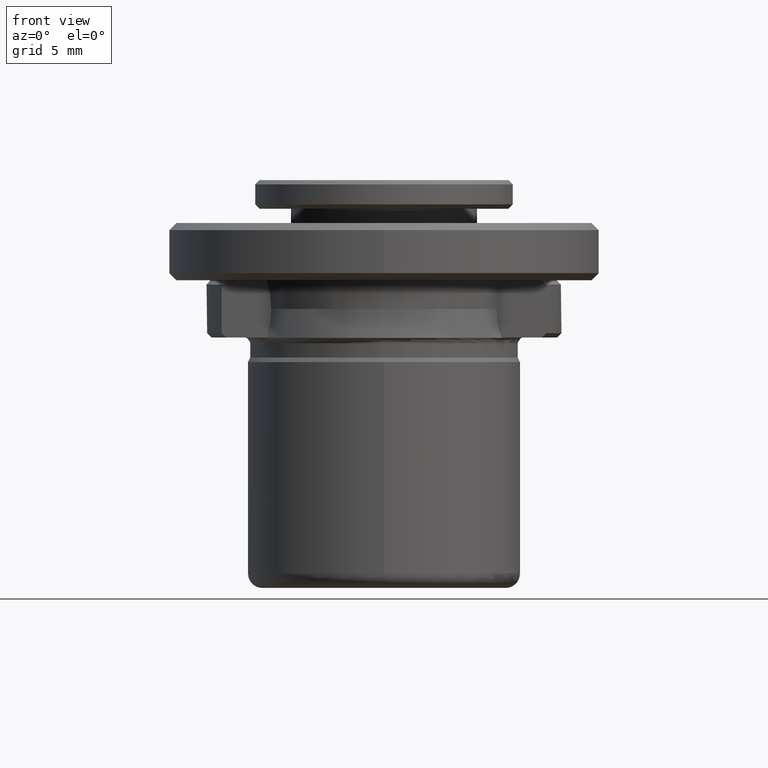
[diagram: clean part render]
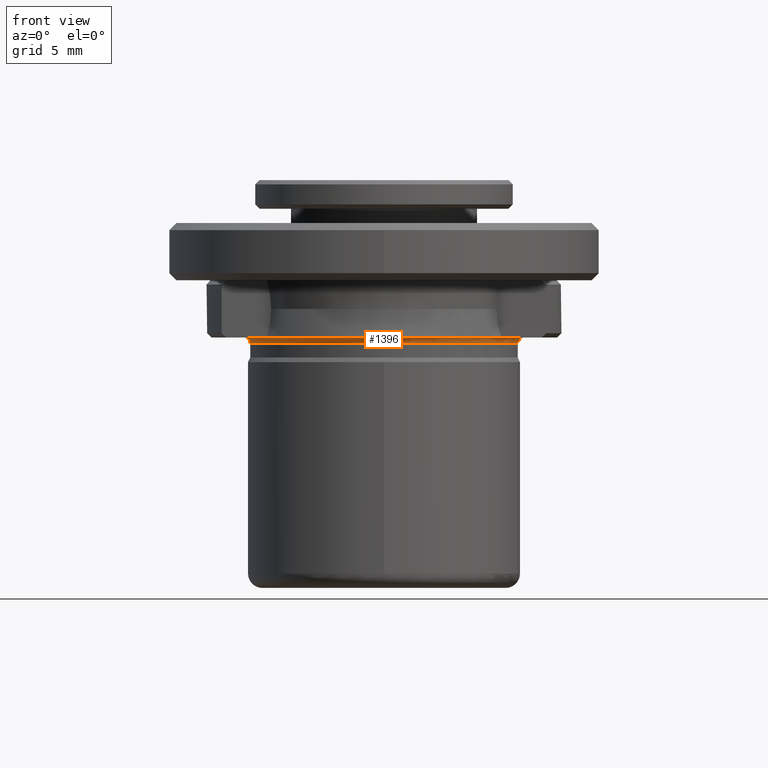
[diagram: same view with one face highlighted and labeled with its STEP entity id]
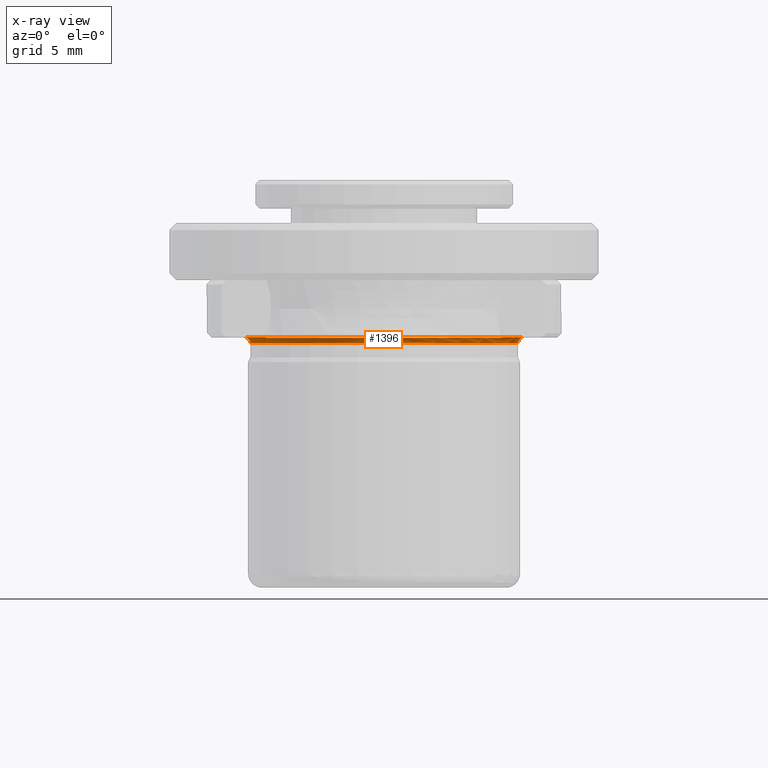
[diagram: x-ray of the same camera — body ghosted, the highlighted face saturated]
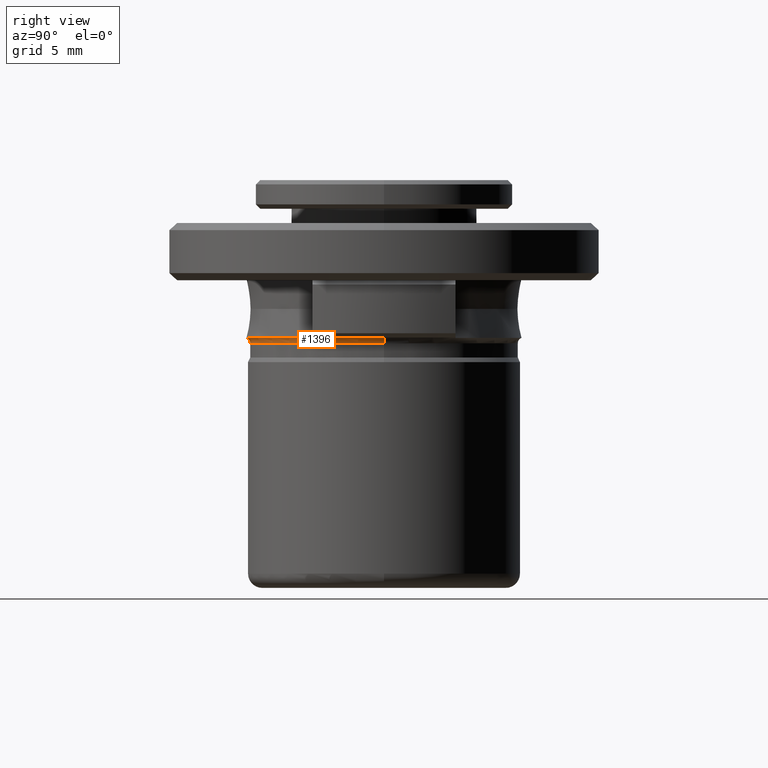
[diagram: same view with one face highlighted and labeled with its STEP entity id]
A machine part, front view. The second image highlights one B-rep face of the part: STEP entity #1396.
The next image is the same camera in x-ray: the body ghosted, the highlighted face saturated — about 0% of this face is hidden behind the body in this view.
A second angle (right view) of the same face is appended — the face is thin or edge-on in the first view.
In plain terms, the highlighted toroidal blend (fillet) surface has major radius 9.75 mm and minor (blend) radius 0.4 mm.
Its self-contained STEP definition (entity closure, byte-faithful):
#12 = EDGE_CURVE ( 'NONE', #387, #373, #694, .T. ) ;
#56 = VERTEX_POINT ( 'NONE', #1390 ) ;
#131 = CIRCLE ( 'NONE', #763, 9.350000000108330800 ) ;
#137 = EDGE_CURVE ( 'NONE', #373, #785, #131, .T. ) ;
#158 = AXIS2_PLACEMENT_3D ( 'NONE', #1520, #1785, #1654 ) ;
#192 = DIRECTION ( 'NONE',  ( 0.0000000000000000000, -0.0000000000000000000, -1.000000000000000000 ) ) ;
#244 = VERTEX_POINT ( 'NONE', #1222 ) ;
#249 = CARTESIAN_POINT ( 'NONE',  ( -3.469446951953614200E-015, 1.203104456337644700E-010, 4.724235040888958200 ) ) ;
#301 = DIRECTION ( 'NONE',  ( -0.0000000000000000000, 0.0000000000000000000, -1.000000000000000000 ) ) ;
#368 = CARTESIAN_POINT ( 'NONE',  ( -9.350000000108330800, 1.145044757216041900E-015, 4.349999999879580400 ) ) ;
#373 = VERTEX_POINT ( 'NONE', #1051 ) ;
#387 = VERTEX_POINT ( 'NONE', #882 ) ;
#388 = DIRECTION ( 'NONE',  ( 0.0000000000000000000, 1.000000000000000000, 9.026779162473682500E-017 ) ) ;
#402 = ORIENTED_EDGE ( 'NONE', *, *, #624, .T. ) ;
#404 = VERTEX_POINT ( 'NONE', #611 ) ;
#416 = ORIENTED_EDGE ( 'NONE', *, *, #1628, .T. ) ;
#496 = CARTESIAN_POINT ( 'NONE',  ( -8.205382973924146800, -5.000000000000000900, 4.724235040594156700 ) ) ;
#544 = DIRECTION ( 'NONE',  ( -0.0000000000000000000, 0.0000000000000000000, 1.000000000000000000 ) ) ;
#545 = CARTESIAN_POINT ( 'NONE',  ( -8.259008783760565500, -5.000000000000000000, 4.741517755019041900 ) ) ;
#554 = CARTESIAN_POINT ( 'NONE',  ( -9.750000000561367800, 1.194030629237417500E-015, 4.749999999889213100 ) ) ;
#563 = AXIS2_PLACEMENT_3D ( 'NONE', #1571, #765, #1703 ) ;
#575 = EDGE_CURVE ( 'NONE', #404, #387, #1383, .T. ) ;
#611 = CARTESIAN_POINT ( 'NONE',  ( 8.370334520555237700, -5.000000000000000000, 4.749999999889213100 ) ) ;
#624 = EDGE_CURVE ( 'NONE', #404, #244, #1365, .T. ) ;
#651 = DIRECTION ( 'NONE',  ( 1.224646799147353200E-016, 1.000000000000000000, 0.0000000000000000000 ) ) ;
#693 = VERTEX_POINT ( 'NONE', #496 ) ;
#694 = CIRCLE ( 'NONE', #563, 0.4000000002154814300 ) ;
#715 = ORIENTED_EDGE ( 'NONE', *, *, #886, .T. ) ;
#734 = B_SPLINE_CURVE_WITH_KNOTS ( 'NONE', 3,
 ( #833, #1494, #545, #1502 ),
 .UNSPECIFIED., .F., .F.,
 ( 4, 4 ),
 ( 0.0000000000000000000, 0.0001669516248611322700 ),
 .UNSPECIFIED. ) ;
#763 = AXIS2_PLACEMENT_3D ( 'NONE', #1040, #192, #1166 ) ;
#765 = DIRECTION ( 'NONE',  ( 0.0000000000000000000, -1.000000000000000000, 0.0000000000000000000 ) ) ;
#784 = CARTESIAN_POINT ( 'NONE',  ( 8.259008783759654200, -5.000000000000000000, 4.741517755018747900 ) ) ;
#785 = VERTEX_POINT ( 'NONE', #368 ) ;
#811 = CIRCLE ( 'NONE', #1731, 9.750000000796468700 ) ;
#819 = EDGE_LOOP ( 'NONE', ( #416, #1603, #1203, #1211, #837, #402, #715, #1672 ) ) ;
#833 = CARTESIAN_POINT ( 'NONE',  ( -8.370334521172623000, -4.999999999999999100, 4.749999999889213100 ) ) ;
#837 = ORIENTED_EDGE ( 'NONE', *, *, #575, .F. ) ;
#872 = CIRCLE ( 'NONE', #1707, 0.4000000002154814300 ) ;
#882 = CARTESIAN_POINT ( 'NONE',  ( 9.750000000236514800, 0.0000000000000000000, 4.749999999889213100 ) ) ;
#886 = EDGE_CURVE ( 'NONE', #244, #693, #900, .T. ) ;
#900 = CIRCLE ( 'NONE', #1560, 9.608762132945692300 ) ;
#917 = CARTESIAN_POINT ( 'NONE',  ( 8.370334520555237700, -5.000000000000000000, 4.749999999889213100 ) ) ;
#957 = EDGE_CURVE ( 'NONE', #56, #693, #734, .T. ) ;
#960 = AXIS2_PLACEMENT_3D ( 'NONE', #1367, #544, #1499 ) ;
#1016 = FACE_OUTER_BOUND ( 'NONE', #819, .T. ) ;
#1040 = CARTESIAN_POINT ( 'NONE',  ( 0.0000000000000000000, 0.0000000000000000000, 4.349999999879580400 ) ) ;
#1051 = CARTESIAN_POINT ( 'NONE',  ( 9.350000000108330800, 0.0000000000000000000, 4.349999999879580400 ) ) ;
#1130 = CARTESIAN_POINT ( 'NONE',  ( 0.0000000000000000000, 0.0000000000000000000, 4.749999999889213100 ) ) ;
#1166 = DIRECTION ( 'NONE',  ( -1.000000000000000000, 0.0000000000000000000, 0.0000000000000000000 ) ) ;
#1170 = EDGE_CURVE ( 'NONE', #1584, #785, #872, .T. ) ;
#1172 = CARTESIAN_POINT ( 'NONE',  ( 8.314009200587245000, -5.000000001017176600, 4.749999998704311100 ) ) ;
#1203 = ORIENTED_EDGE ( 'NONE', *, *, #137, .F. ) ;
#1211 = ORIENTED_EDGE ( 'NONE', *, *, #12, .F. ) ;
#1216 = DIRECTION ( 'NONE',  ( -0.0000000000000000000, 1.231706655199673800E-016, -1.000000000000000000 ) ) ;
#1222 = CARTESIAN_POINT ( 'NONE',  ( 8.205382973924143300, -5.000000000000000900, 4.724235040594156700 ) ) ;
#1264 = DIRECTION ( 'NONE',  ( 1.000000000000000000, 1.776356839400250500E-015, 0.0000000000000000000 ) ) ;
#1365 = B_SPLINE_CURVE_WITH_KNOTS ( 'NONE', 3,
 ( #917, #1172, #784, #1722 ),
 .UNSPECIFIED., .F., .F.,
 ( 4, 4 ),
 ( 0.0000000000000000000, 0.0001669516248584918300 ),
 .UNSPECIFIED. ) ;
#1367 = CARTESIAN_POINT ( 'NONE',  ( 0.0000000000000000000, 0.0000000000000000000, 4.749999999889213100 ) ) ;
#1383 = CIRCLE ( 'NONE', #960, 9.750000000146760800 ) ;
#1390 = CARTESIAN_POINT ( 'NONE',  ( -8.370334521172623000, -4.999999999999999100, 4.749999999889213100 ) ) ;
#1396 = ADVANCED_FACE ( 'NONE', ( #1016 ), #1418, .F. ) ;
#1418 = TOROIDAL_SURFACE ( 'NONE', #158, 9.750000000326270600, 0.4000000002154814300 ) ;
#1465 = CARTESIAN_POINT ( 'NONE',  ( -9.750000000326270600, 1.194030629208625900E-015, 4.349999999673730900 ) ) ;
#1494 = CARTESIAN_POINT ( 'NONE',  ( -8.314009200589170600, -5.000000001018015900, 4.749999998703816400 ) ) ;
#1499 = DIRECTION ( 'NONE',  ( 1.000000000000000000, 0.0000000000000000000, 0.0000000000000000000 ) ) ;
#1502 = CARTESIAN_POINT ( 'NONE',  ( -8.205382973924146800, -5.000000000000000900, 4.724235040594156700 ) ) ;
#1520 = CARTESIAN_POINT ( 'NONE',  ( 0.0000000000000000000, 0.0000000000000000000, 4.349999999673730900 ) ) ;
#1560 = AXIS2_PLACEMENT_3D ( 'NONE', #249, #1216, #388 ) ;
#1571 = CARTESIAN_POINT ( 'NONE',  ( 9.750000000326270600, 0.0000000000000000000, 4.349999999673730900 ) ) ;
#1584 = VERTEX_POINT ( 'NONE', #554 ) ;
#1596 = DIRECTION ( 'NONE',  ( -1.000000000000000000, 1.224646799147352200E-016, 0.0000000000000000000 ) ) ;
#1603 = ORIENTED_EDGE ( 'NONE', *, *, #1170, .T. ) ;
#1628 = EDGE_CURVE ( 'NONE', #56, #1584, #811, .T. ) ;
#1654 = DIRECTION ( 'NONE',  ( 1.000000000000000000, 0.0000000000000000000, 0.0000000000000000000 ) ) ;
#1672 = ORIENTED_EDGE ( 'NONE', *, *, #957, .F. ) ;
#1703 = DIRECTION ( 'NONE',  ( 0.0000000000000000000, 0.0000000000000000000, -1.000000000000000000 ) ) ;
#1707 = AXIS2_PLACEMENT_3D ( 'NONE', #1465, #651, #1596 ) ;
#1722 = CARTESIAN_POINT ( 'NONE',  ( 8.205382973924143300, -5.000000000000000900, 4.724235040594156700 ) ) ;
#1731 = AXIS2_PLACEMENT_3D ( 'NONE', #1130, #301, #1264 ) ;
#1785 = DIRECTION ( 'NONE',  ( -0.0000000000000000000, 0.0000000000000000000, 1.000000000000000000 ) ) ;